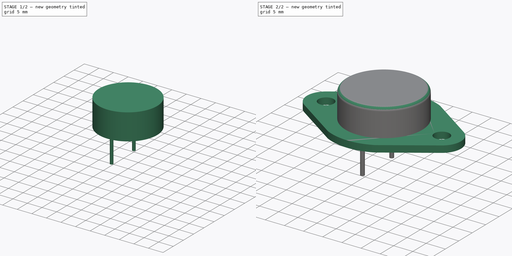
[diagram: build sequence overview — one tinted view per stage of 2, left to right]
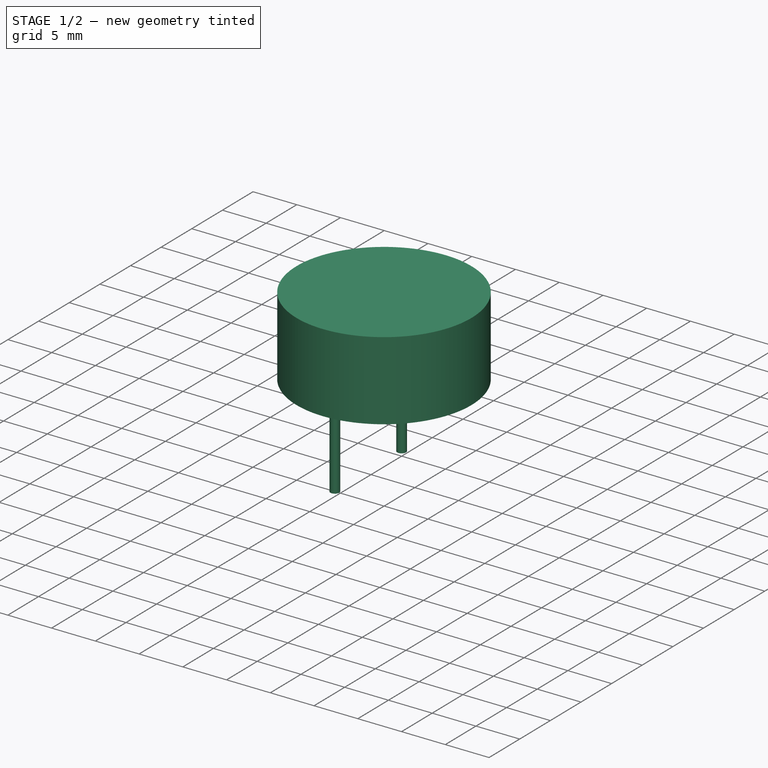
[diagram: stage 1 of 2 — iso view after this stage's code; geometry added in this stage tinted green]
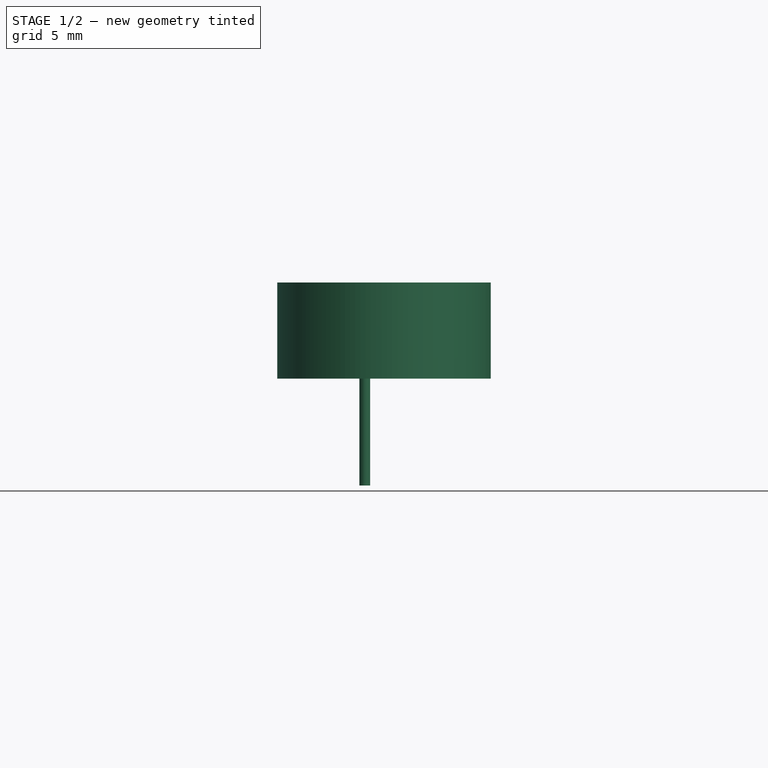
[diagram: stage 1 of 2 — front view after this stage's code; geometry added in this stage tinted green]
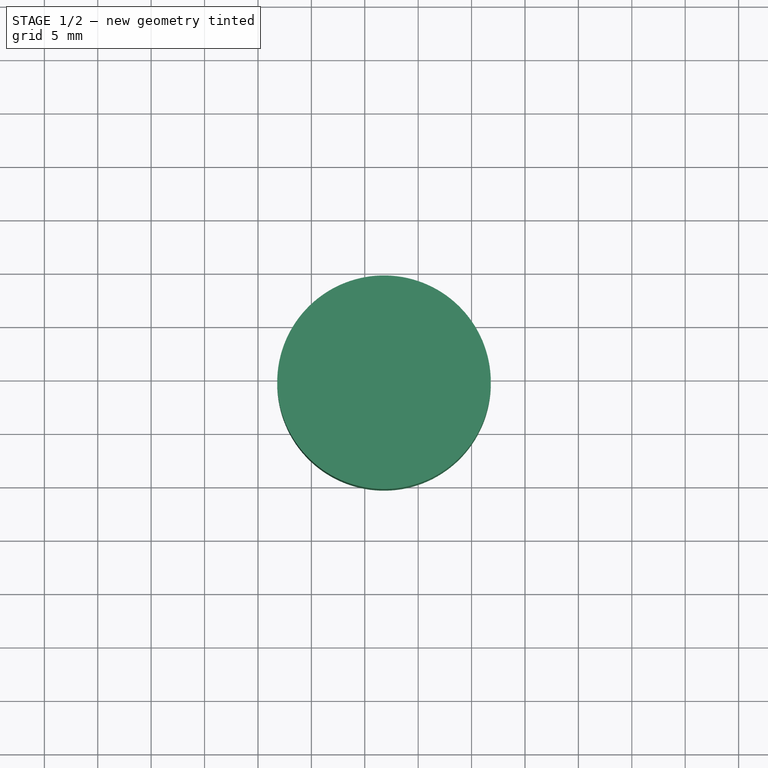
[diagram: stage 1 of 2 — top view after this stage's code; geometry added in this stage tinted green]
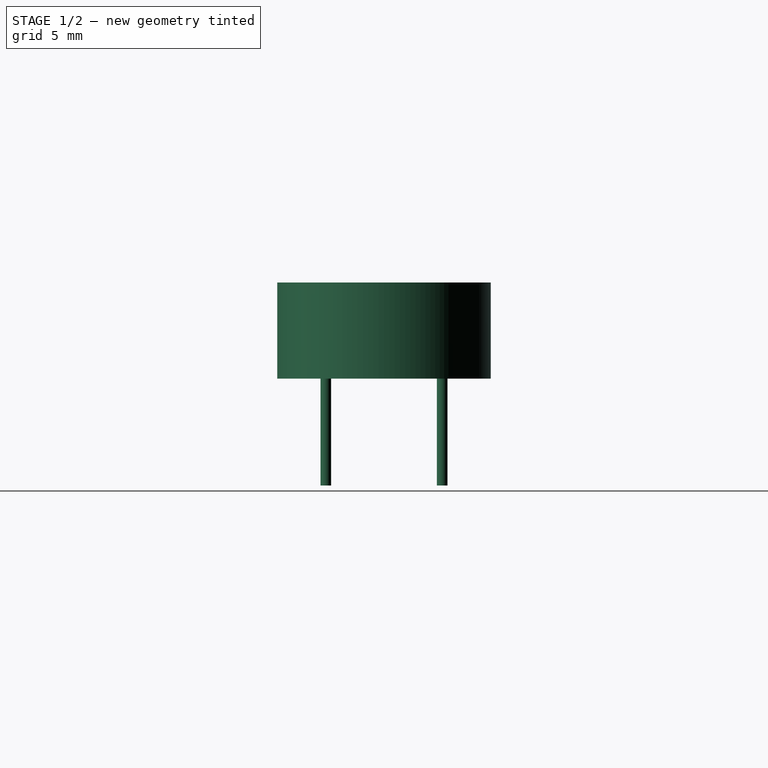
[diagram: stage 1 of 2 — right view after this stage's code; geometry added in this stage tinted green]
FCSTD DOCUMENT  (FreeCAD 0.16R6703 (Git))
Label: TO-3
License: All rights reserved
LicenseURL: http://en.wikipedia.org/wiki/All_rights_reserved
objects: Sketcher::SketchObject×3, PartDesign::Pad×3, PartDesign::Fillet×1
note: 10 computed .brp shape members not serialized (recipe doc carries the construction recipe); baked Part::Feature solids carry a one-line shape summary decoded from their .brp

FEATURE [Sketcher::SketchObject] Sketch001
  expr: Constraints[1] = 10.9 / 2
  sketch-geometry (1):
    g0: Circle CenterX=1.8 CenterY=-5.45 CenterZ=0 NormalX=0 NormalY=0 NormalZ=1 Radius=10
  constraints (3):
    c: DistanceX(g-1,g0) = 1.8
    c: DistanceY(g0,g-1) = 5.45
    c: Radius(g0) = 10
FEATURE [PartDesign::Pad] Pad001
  Length = 9
  Length2 = 100
  Sketch = -> Sketch001
  Type = 0
FEATURE [Sketcher::SketchObject] Sketch002
  sketch-geometry (2):
    g0: Circle CenterX=0 CenterY=0 CenterZ=0 NormalX=0 NormalY=0 NormalZ=1 Radius=0.5
    g1: Circle CenterX=0 CenterY=-10.9 CenterZ=0 NormalX=0 NormalY=0 NormalZ=1 Radius=0.5
  constraints (5):
    c: PointOnObject(g1,g-2)
    c: Equal(g0,g1)
    c: Coincident(g0,g-1)
    c: Radius(g0) = 0.5
    c: DistanceY(g1,g-1) = 10.9
FEATURE [PartDesign::Pad] Pad002
  Length = 10
  Length2 = 100
  Reversed = true
  Sketch = -> Sketch002
  Type = 0
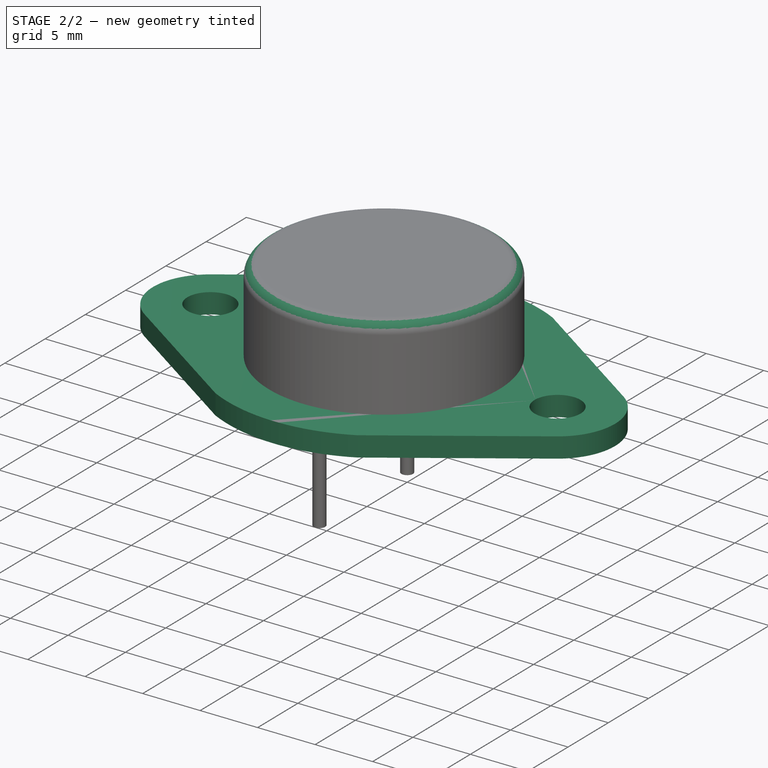
[diagram: stage 2 of 2 — iso view after this stage's code; geometry added in this stage tinted green]
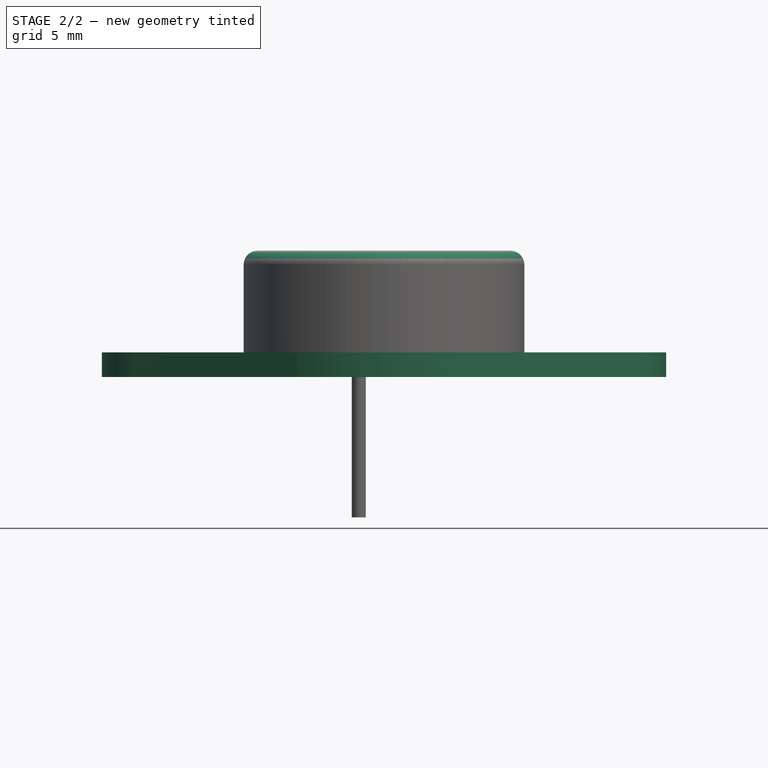
[diagram: stage 2 of 2 — front view after this stage's code; geometry added in this stage tinted green]
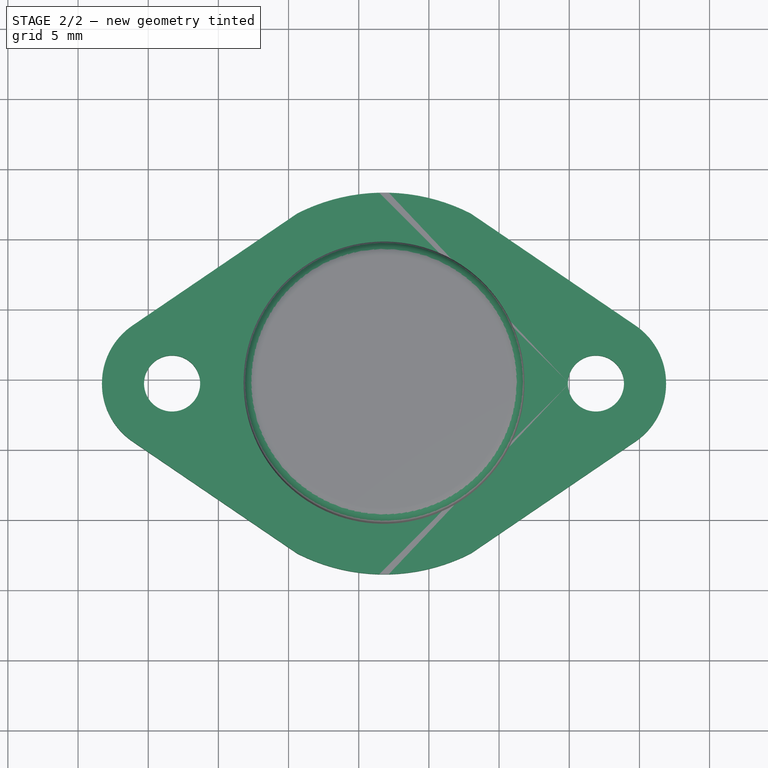
[diagram: stage 2 of 2 — top view after this stage's code; geometry added in this stage tinted green]
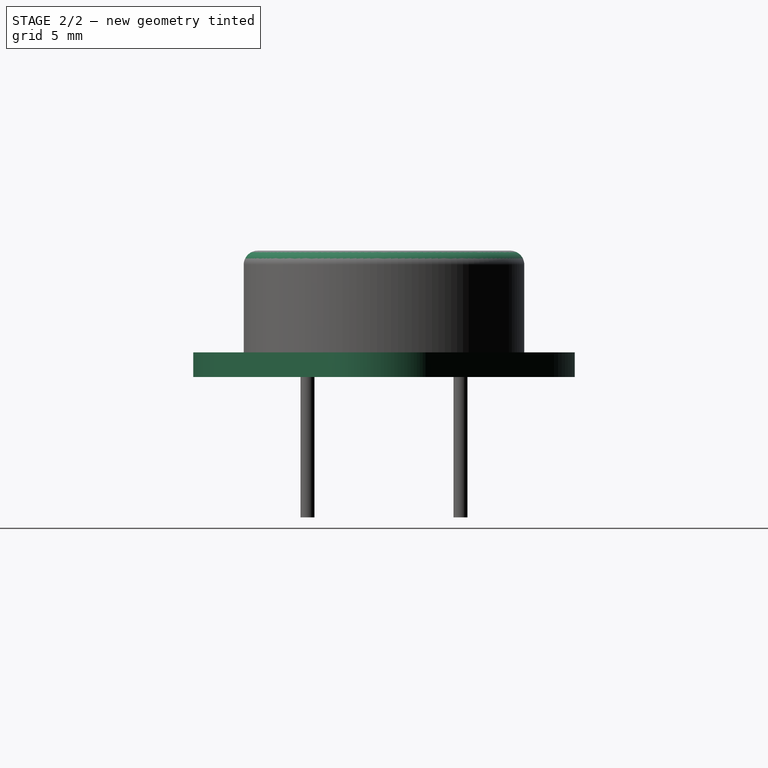
[diagram: stage 2 of 2 — right view after this stage's code; geometry added in this stage tinted green]
FEATURE [Sketcher::SketchObject] Sketch
  expr: Constraints[8] = 27.2 / 2
  expr: Constraints[5] = 10.9 / 2
  sketch-geometry (15):
    g0: LineSegment [constr] StartX=1.8 StartY=8.15 StartZ=0 EndX=1.8 EndY=-19.05 EndZ=0
    g1: LineSegment [constr] StartX=-18.3 StartY=-5.45 StartZ=0 EndX=21.9 EndY=-5.45 EndZ=0
    g2: GeomPoint [constr] X=1.8 Y=-5.45 Z=0
    g3: Circle CenterX=16.9 CenterY=-5.45 CenterZ=0 NormalX=0 NormalY=0 NormalZ=1 Radius=2
    g4: Circle CenterX=-13.3 CenterY=-5.45 CenterZ=0 NormalX=0 NormalY=0 NormalZ=1 Radius=2
    g5: ArcOfCircle CenterX=-13.3 CenterY=-5.45 CenterZ=0 NormalX=0 NormalY=0 NormalZ=1 Radius=5 StartAngle=2.1681 EndAngle=3.14159
    g6: ArcOfCircle CenterX=-13.3 CenterY=-5.45 CenterZ=0 NormalX=0 NormalY=0 NormalZ=1 Radius=5 StartAngle=3.14159 EndAngle=4.11508
    g7: ArcOfCircle CenterX=16.9 CenterY=-5.45 CenterZ=0 NormalX=0 NormalY=0 NormalZ=1 Radius=5 StartAngle=0 EndAngle=0.97349
    g8: ArcOfCircle CenterX=16.9 CenterY=-5.45 CenterZ=0 NormalX=0 NormalY=0 NormalZ=1 Radius=5 StartAngle=5.3097 EndAngle=6.28319
    g9: ArcOfCircle CenterX=1.8 CenterY=-5.45 CenterZ=0 NormalX=0 NormalY=0 NormalZ=1 Radius=13.6 StartAngle=1.09928 EndAngle=2.04232
    g10: ArcOfCircle CenterX=1.8 CenterY=-5.45 CenterZ=0 NormalX=0 NormalY=0 NormalZ=1 Radius=13.6 StartAngle=4.24087 EndAngle=5.18391
    g11: LineSegment StartX=-16.1121 StartY=-1.31573 StartZ=0 EndX=-4.37769 EndY=6.66595 EndZ=0
    g12: LineSegment StartX=7.97769 StartY=6.66595 StartZ=0 EndX=19.7121 EndY=-1.31573 EndZ=0
    g13: LineSegment StartX=19.7121 StartY=-9.58427 StartZ=0 EndX=7.97769 EndY=-17.5659 EndZ=0
    g14: LineSegment StartX=-4.37769 StartY=-17.5659 StartZ=0 EndX=-16.1121 EndY=-9.58427 EndZ=0
  constraints (43):
    c: Vertical(g0)
    c: Horizontal(g1)
    c: PointOnObject(g2,g0)
    c: PointOnObject(g2,g1)
    c: DistanceX(g-1,g2) = 1.8
    c: DistanceY(g2,g-1) = 5.45
    c: DistanceX(g1,g1) = 40.2
    c: DistanceY(g0,g0) = 27.2
    c: DistanceY(g0,g2) = 13.6
    c: PointOnObject(g3,g1)
    c: PointOnObject(g4,g1)
    c: Equal(g4,g3)
    c: Radius(g3) = 2
    c: Coincident(g5,g4)
    c: Coincident(g5,g1)
    c: Coincident(g6,g1)
    c: Coincident(g4,g6)
    c: DistanceX(g6,g5) = 0
    c: DistanceX(g4,g3) = 30.2
    c: DistanceX(g1,g4) = 5
    c: Coincident(g7,g3)
    c: Coincident(g7,g1)
    c: Coincident(g8,g3)
    c: Coincident(g8,g1)
    c: DistanceX(g7,g8) = 0
    c: DistanceY(g7,g5) = 0
    c: Coincident(g9,g2)
    c: PointOnObject(g0,g9)
    c: Coincident(g10,g2)
    c: PointOnObject(g0,g10)
    c: DistanceX(g9,g10) = 0
    c: DistanceX(g10,g9) = 0
    c: Coincident(g11,g5)
    c: Coincident(g11,g9)
    c: Coincident(g12,g9)
    c: Coincident(g12,g7)
    c: Coincident(g13,g8)
    c: Coincident(g13,g10)
    c: Coincident(g14,g10)
    c: Coincident(g6,g14)
    c: DistanceY(g9,g9) = 0
    c: DistanceX(g-1,g3) = 16.9
    c: Tangent(g6,g14)
FEATURE [PartDesign::Pad] Pad
  Length = 1.75
  Length2 = 100
  Sketch = -> Sketch
  Type = 0
FEATURE [PartDesign::Fillet] Fillet
  Base = -> Pad001 [Edge3]
  Radius = 1
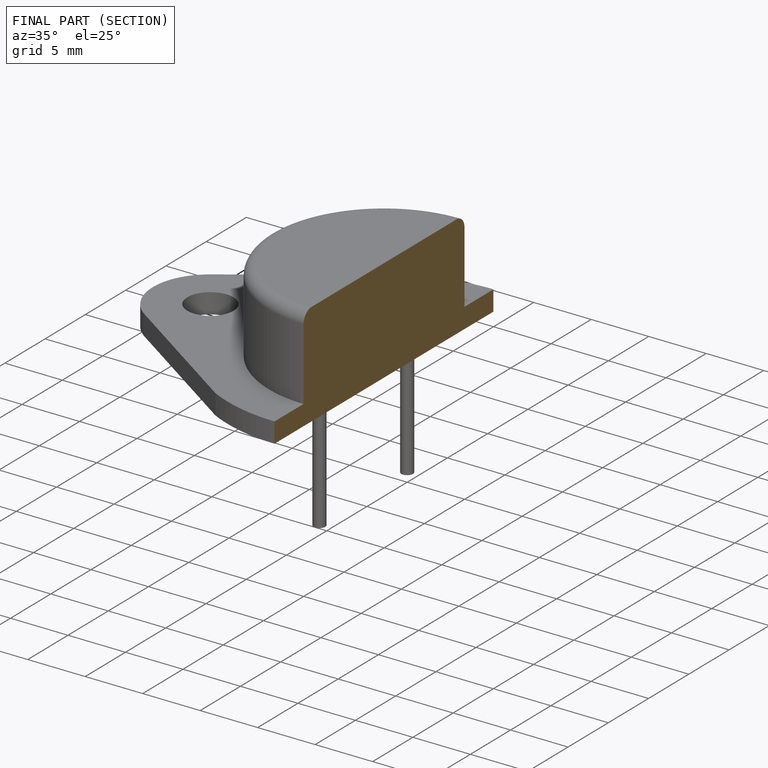
[diagram: finished part — half-section view (interior)]
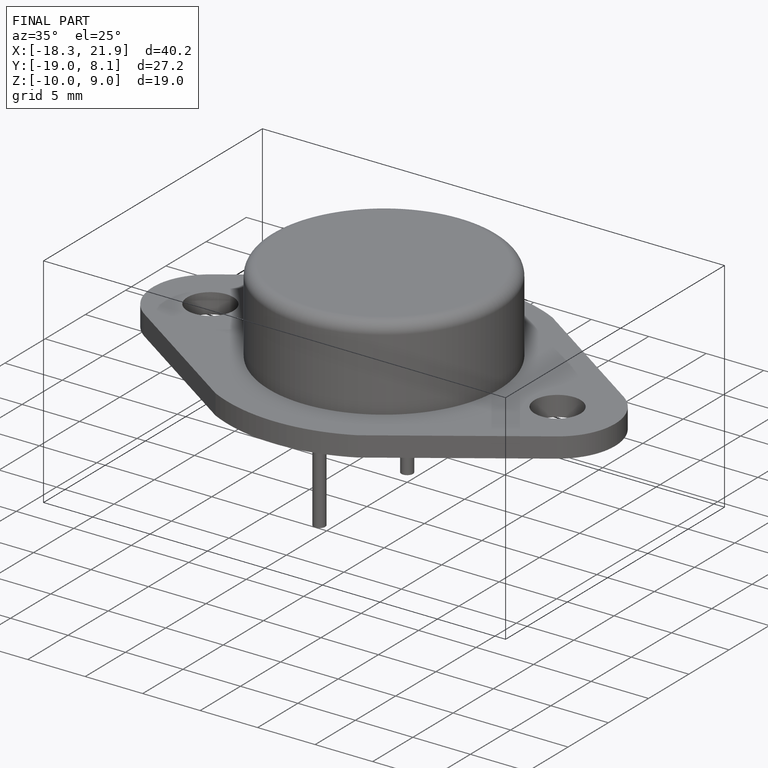
[diagram: finished part — iso view with bounding-box wireframe]
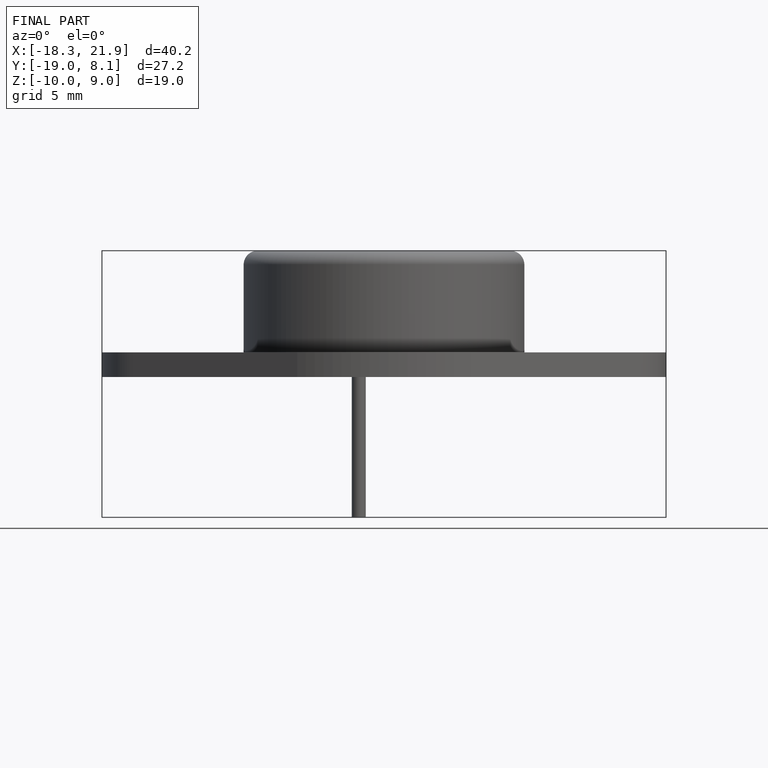
[diagram: finished part — front view with bounding-box wireframe]
